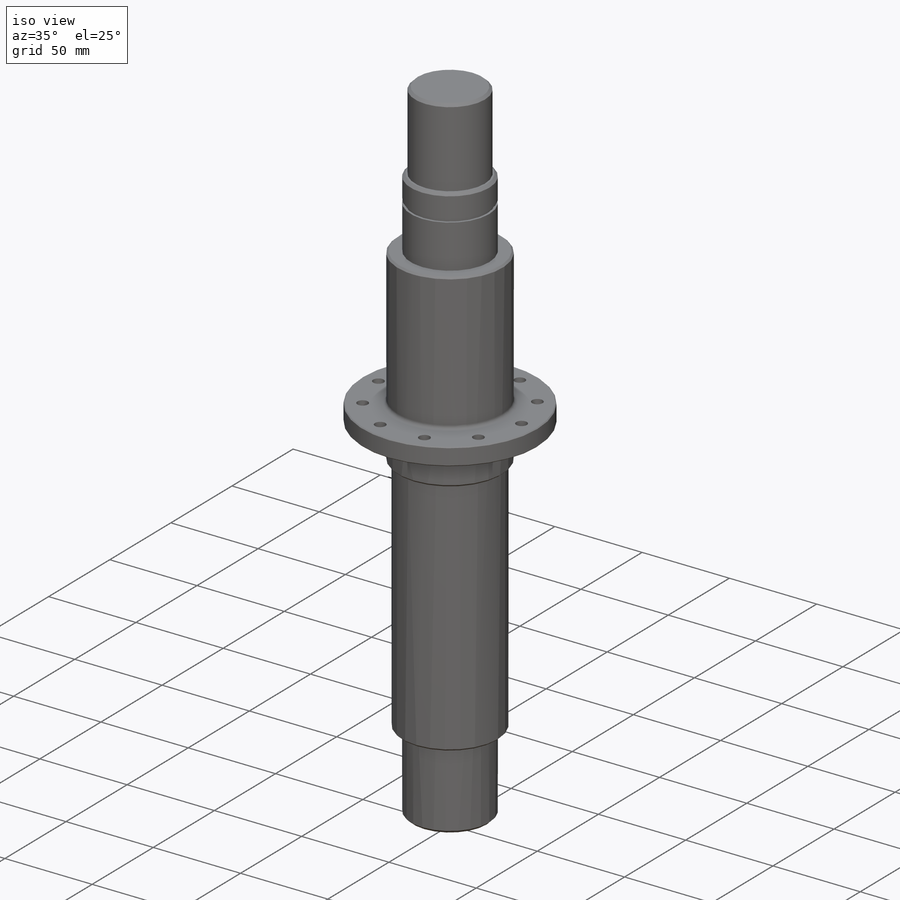
[diagram: iso view]
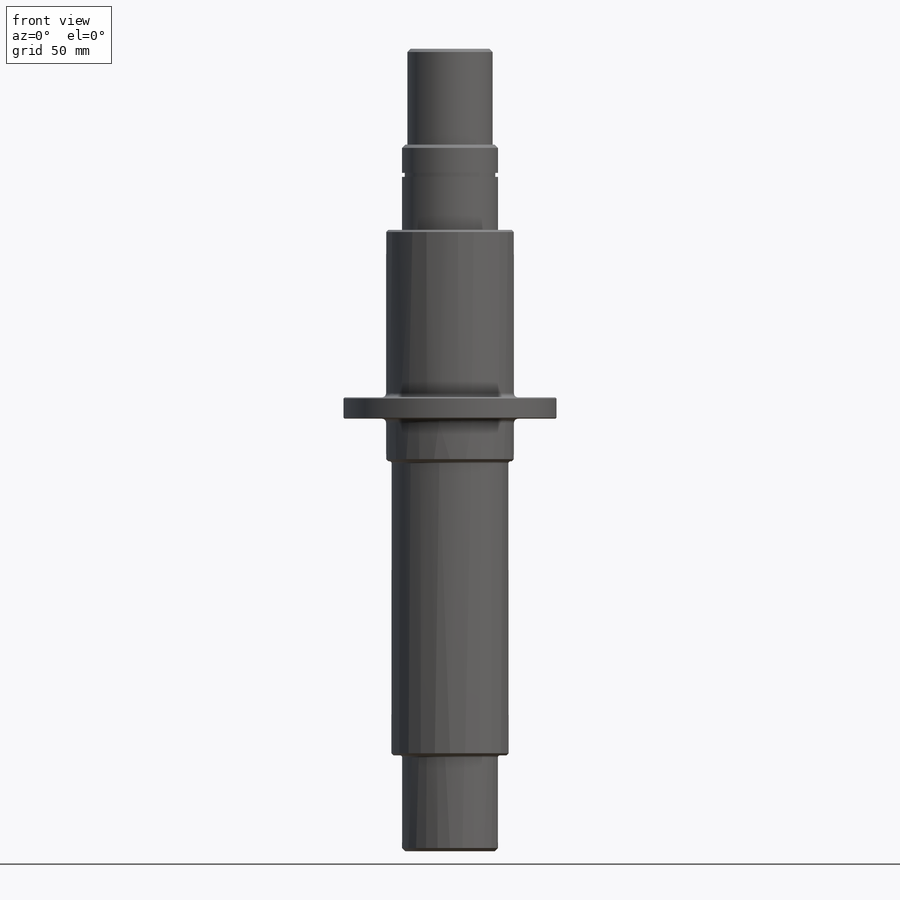
[diagram: front view]
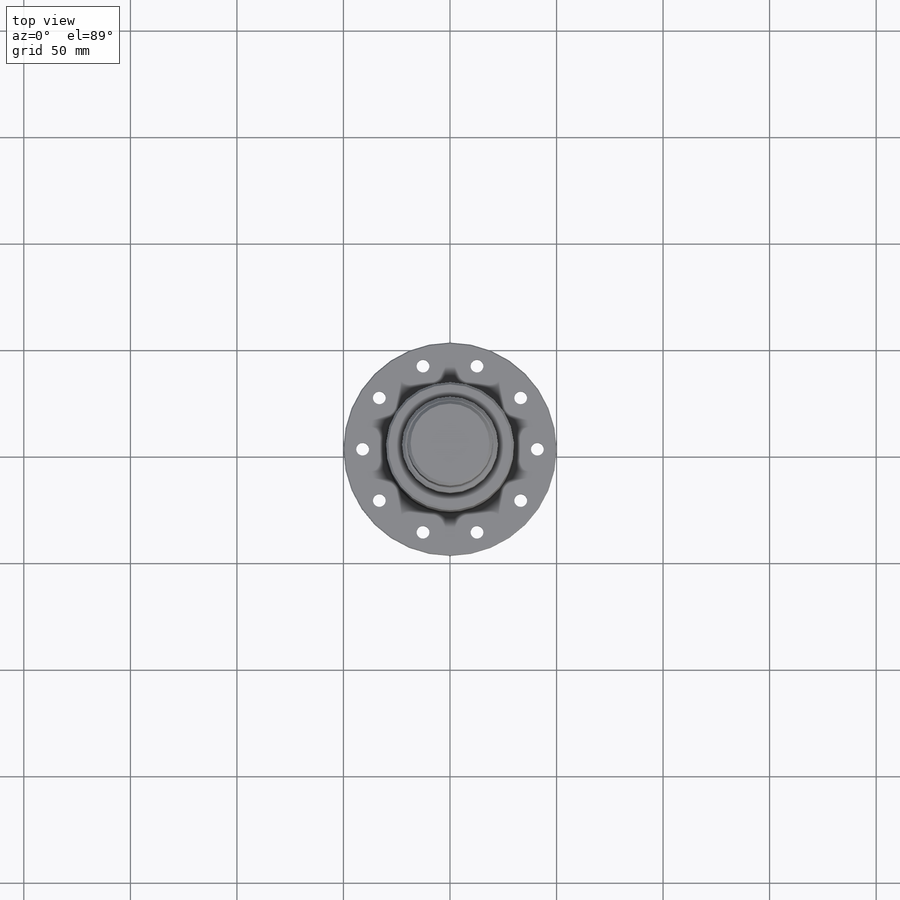
[diagram: top view]
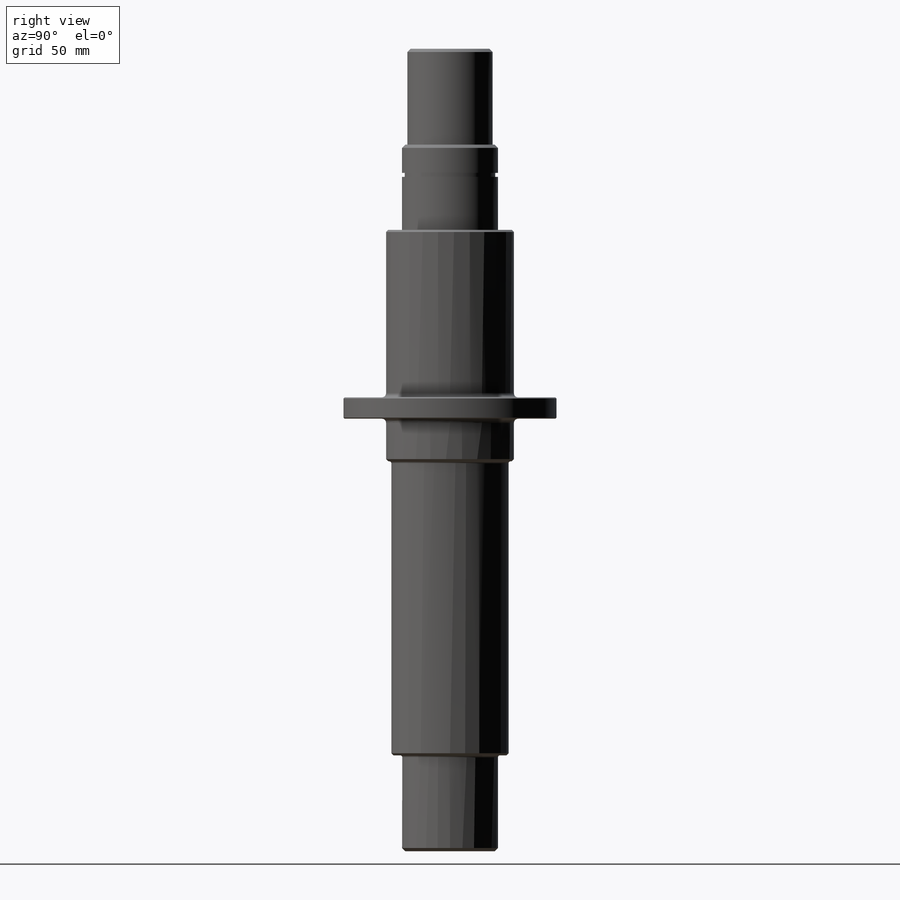
[diagram: right view]
SOLIDWORKS PART (.sldprt)
format: sldprt  version: not decoded by parser v0  size: 378,880 bytes
history: native  units: mm
features: sketch x11, thread x10, extrude x9, chamfer x8, fillet x4, plane x3, material x1, cut_extrude x1 (+13 scaffold rows collapsed)
feature tree (60):
  scaffold x13  (default folders/planes/origin — collapsed)
  material  "Material <nicht festgelegt>"
  plane  "Ebene vorne"
  plane  "Ebene oben"
  plane  "Ebene rechts"
  sketch  "Skizze1"  dims[D1=~55.982796mm]
  extrude  "Aufsatz-Linear austragen1"  Depth=10mm
  sketch  "Skizze2"  dims[c1.D1=82.0mm c1.D10=~35.932928mm c2.D1=~17.346009mm c2.D2=50.0mm c3.D2=36.0deg c3.D3=50.0mm c4.D3=18.0deg c4.D4=50.0mm c5.D4=36.0deg c6.D4=100.0mm c7.D4=36.0deg c7.D5=~33.169697mm c8.D5=36.0deg c8.D6=~38.993317mm c9.D6=18.0deg c10.D6=41.0mm c11.D6=36.0deg c11.D7=~35.844148mm c12.D7=36.0deg c12.D8=41.0mm c13.D8=18.0deg c13.D9=~38.611418mm c14.D9=36.0deg]
  cut_extrude  "Schnitt-Linear austragen2"  [1 undecoded]
  thread  "Gewindedarstellung1"  Diameter=8.5mm  [1 undecoded]
  thread  "Gewindedarstellung2"  Diameter=8.5mm  [1 undecoded]
  thread  "Gewindedarstellung3"  Diameter=8.5mm  [1 undecoded]
  thread  "Gewindedarstellung4"  Diameter=8.5mm  [1 undecoded]
  thread  "Gewindedarstellung5"  Diameter=8.5mm  [1 undecoded]
  thread  "Gewindedarstellung6"  Diameter=8.5mm  [1 undecoded]
  thread  "Gewindedarstellung7"  Diameter=8.5mm  [1 undecoded]
  thread  "Gewindedarstellung8"  Diameter=8.5mm  [1 undecoded]
  thread  "Gewindedarstellung9"  Diameter=8.5mm  [1 undecoded]
  thread  "Gewindedarstellung10"  Diameter=8.5mm  [1 undecoded]
  sketch  "Skizze3"  dims[D1=~29.934344mm]
  extrude  "Aufsatz-Linear austragen2"  Depth=78.6mm
  fillet  "Verrundung1"  Radius=2mm
  chamfer  "Fase1"  Distance=1mm Angle=45deg
  sketch  "Skizze4"  dims[D1=21.7511mm]
  extrude  "Aufsatz-Linear austragen3"  Depth=24.9mm
  sketch  "Skizze5"  dims[D1=~12.876997mm]
  extrude  "Aufsatz-Linear austragen4"  Depth=1.85mm
  sketch  "Skizze6"
  extrude  "Aufsatz-Linear austragen5"  Depth=13.25mm
  chamfer  "Fase2"  Distance=1.5mm Angle=45deg
  sketch  "Skizze7"  dims[D1=~16.147401mm]
  extrude  "Aufsatz-Linear austragen6"  Depth=45mm
  chamfer  "Fase3"  Distance=1.5mm Angle=45deg
  sketch  "Skizze8"  dims[D1=~36.027012mm]
  extrude  "Aufsatz-Linear austragen7"  Depth=20mm
  chamfer  "Fase4"  Distance=1mm Angle=45deg
  fillet  "Verrundung2"  Radius=2mm
  chamfer  "Fase5"  Distance=0.5mm Angle=45deg
  chamfer  "Fase6"  Distance=0.5mm Angle=45deg
  sketch  "Skizze9"  dims[D1=~22.724701mm]
  extrude  "Aufsatz-Linear austragen8"  Depth=138mm
  sketch  "Skizze10"  dims[D1=~21.344099mm]
  extrude  "Aufsatz-Linear austragen9"  Depth=45mm
  fillet  "Verrundung3"  Radius=1mm
  chamfer  "Fase7"  Distance=1mm Angle=45deg
  fillet  "Verrundung4"  Radius=1mm
  chamfer  "Fase8"  Distance=1.5mm Angle=45deg
  sketch  "3D-Skizze1"  dims[c1.D2=~12.188398mm c1.D4=5.0mm c1.D1=~30.873341mm c2.D4=32.0mm c2.D2=~10.566277mm c2.D1=12.0mm c2.D3=~2.368986mm c3.D1=8.0mm c4.D1=43.5mm c4.D2=43.5mm c5.D1=~12.770394mm c5.D3=12.0mm c5.D2=43.5mm c6.D3=43.5mm c6.D2=43.5mm c7.D3=43.5mm c7.D2=43.5mm c8.D3=43.5mm c8.D2=43.5mm c8.D1=32.0mm c9.D2=8.0mm c9.D3=12.0mm]
decode coverage: 41 of 43 modeling features carry decoded parameters
note: ~ marks probable driven/reference dimensions
note: 11 parameter values undecoded
note: suppression state not decoded; provenance and decode notes live in map.json
